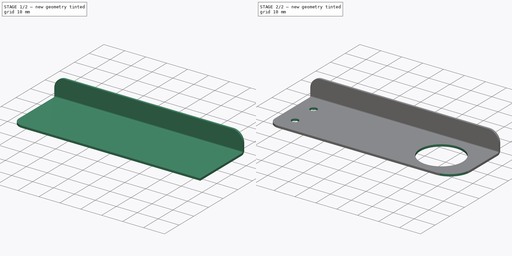
[diagram: build sequence overview — one tinted view per stage of 2, left to right]
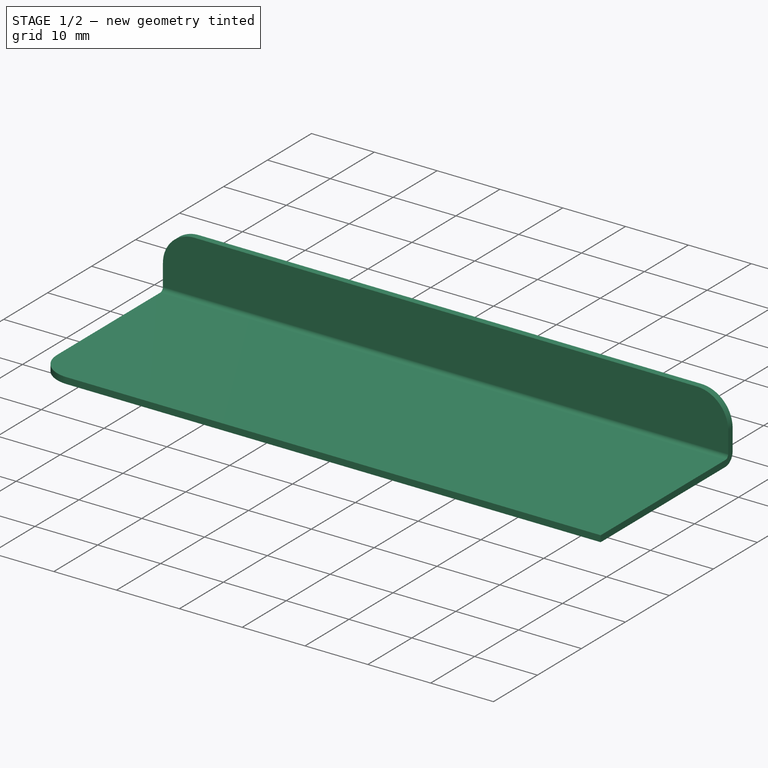
[diagram: stage 1 of 2 — iso view after this stage's code; geometry added in this stage tinted green]
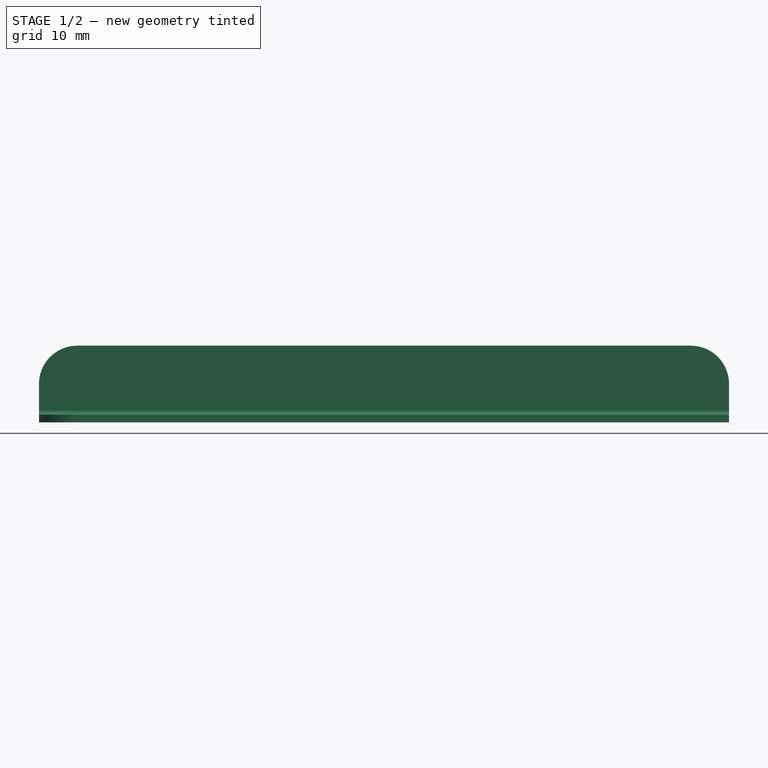
[diagram: stage 1 of 2 — front view after this stage's code; geometry added in this stage tinted green]
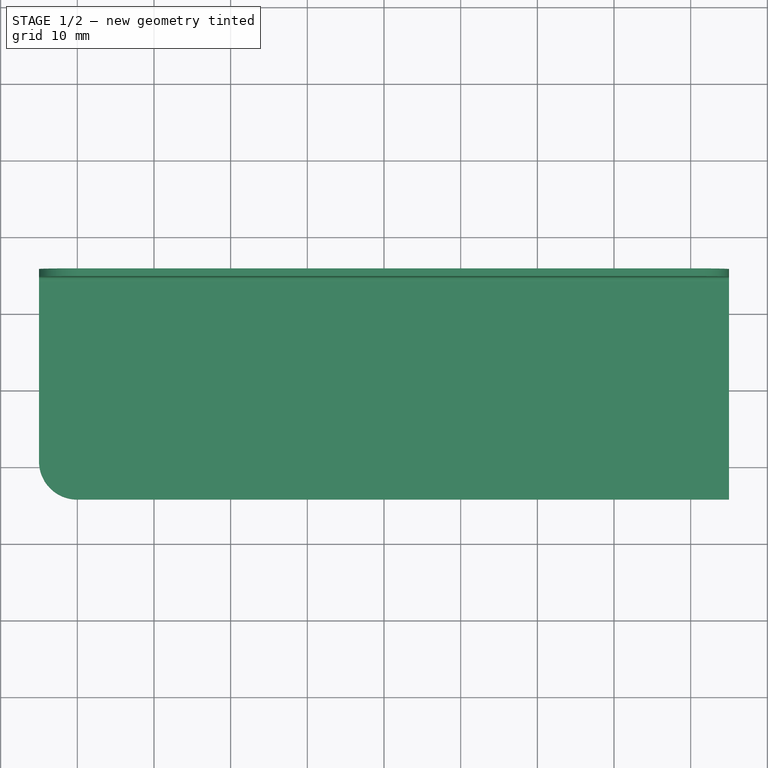
[diagram: stage 1 of 2 — top view after this stage's code; geometry added in this stage tinted green]
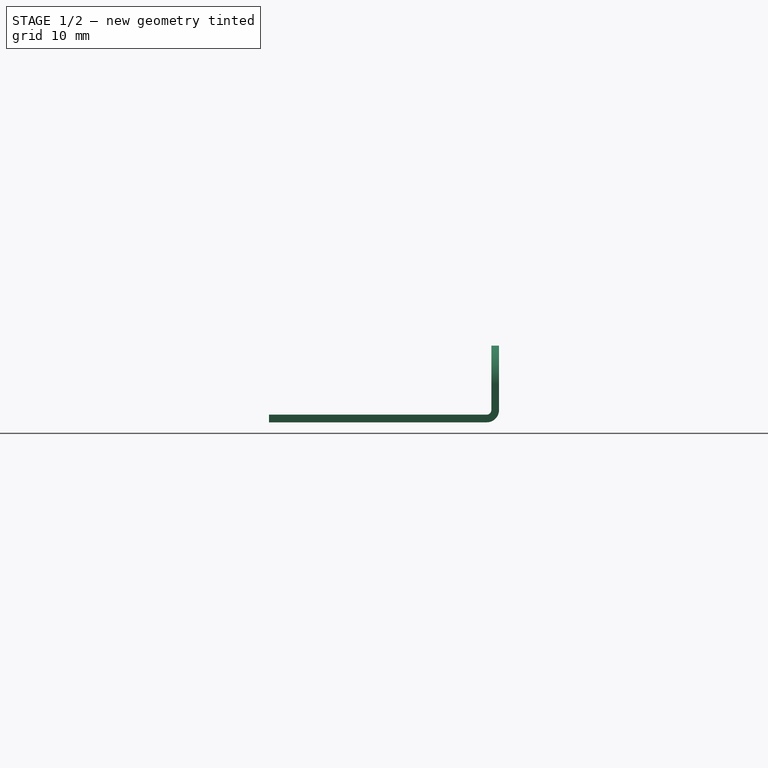
[diagram: stage 1 of 2 — right view after this stage's code; geometry added in this stage tinted green]
FCSTD DOCUMENT  (FreeCAD 1.0R39285 (Git))
Label: FuelReturnHoseBracket
License: All rights reserved
LicenseURL: https://en.wikipedia.org/wiki/All_rights_reserved
objects: PartDesign::Fillet×2, PartDesign::FeaturePython×1, Sketcher::SketchObject×1, PartDesign::Pocket×1, PartDesign::Body×1
note: 14 computed .brp shape members not serialized (recipe doc carries the construction recipe); baked Part::Feature solids carry a one-line shape summary decoded from their .brp

FEATURE [PartDesign::FeaturePython] BaseShape  # WARN: FeaturePython — macro-defined, semantics opaque (R4)
  Suppressed = false
  fillGaps = true
  flangeWidth = 5
  height = 10
  length = 90
  originLoc = 4
  radius = 0.61
  shapeType = 1
  thickness = 1
  width = 30
FEATURE [PartDesign::Fillet] Fillet
  Base = -> BaseShape [Edge20,Edge1,Edge28]
  BaseFeature = -> BaseShape
  Radius = 5
  Refine = true
  SupportTransform = false
  Suppressed = false
  UseAllEdges = false
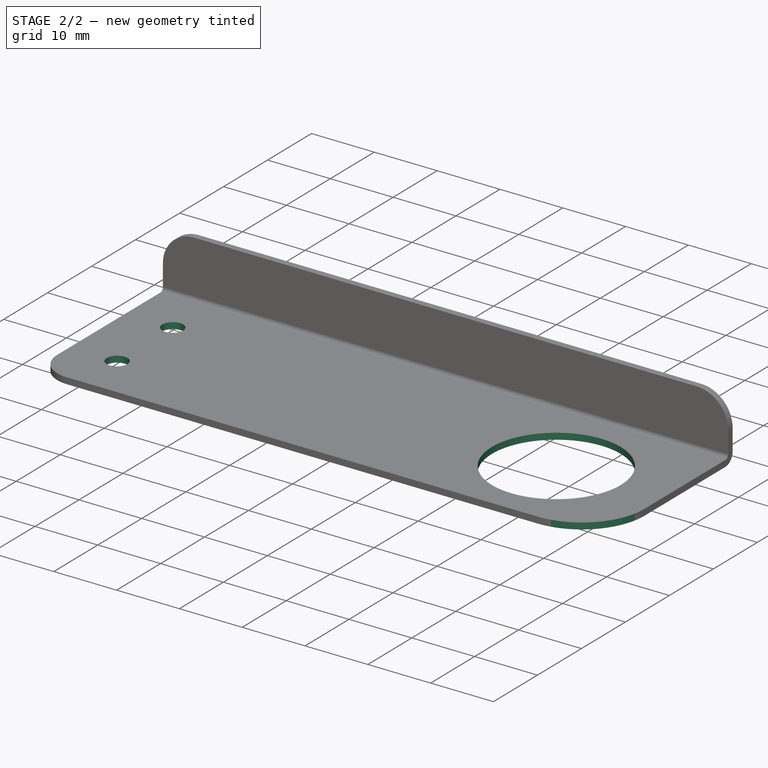
[diagram: stage 2 of 2 — iso view after this stage's code; geometry added in this stage tinted green]
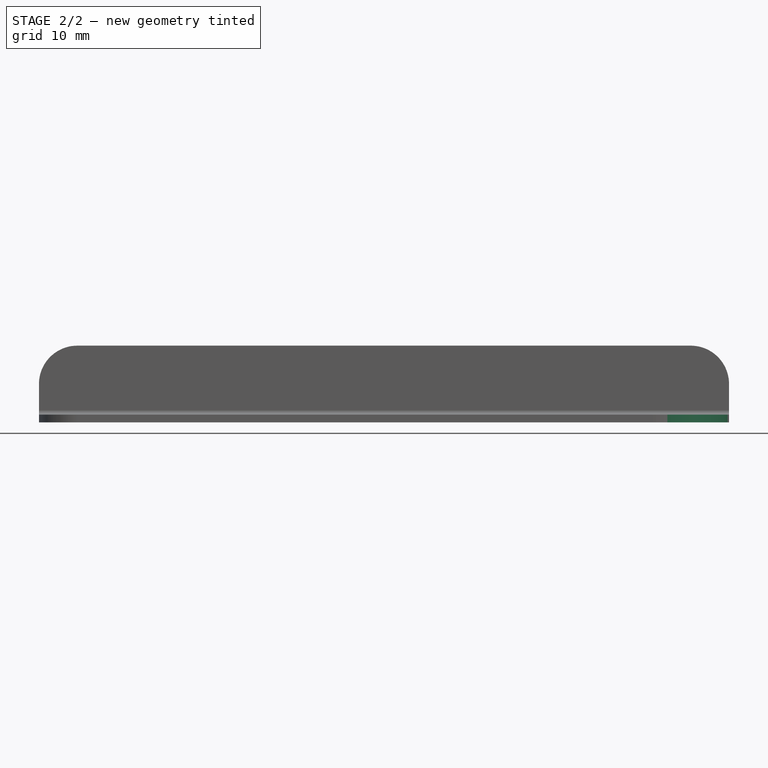
[diagram: stage 2 of 2 — front view after this stage's code; geometry added in this stage tinted green]
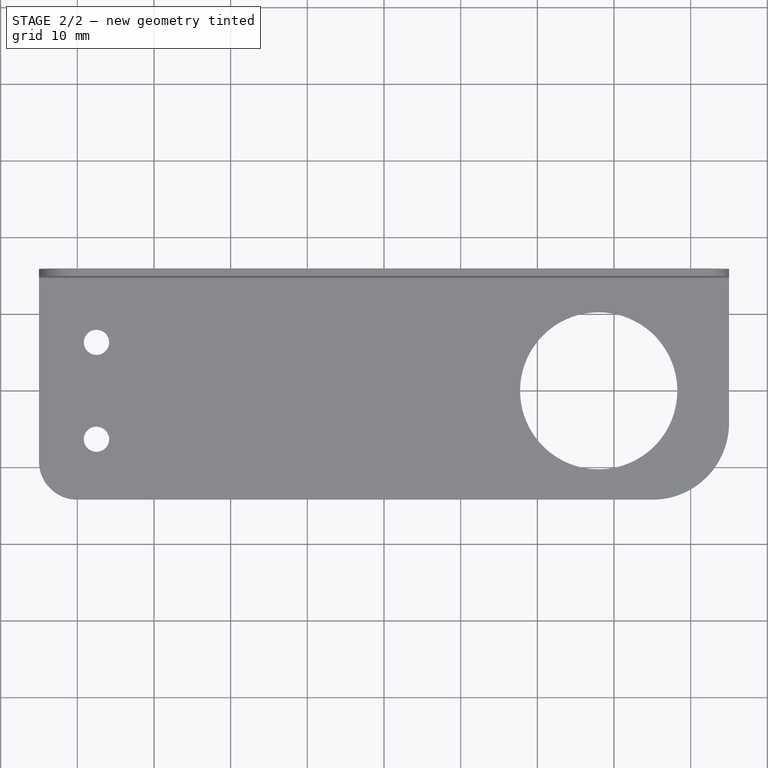
[diagram: stage 2 of 2 — top view after this stage's code; geometry added in this stage tinted green]
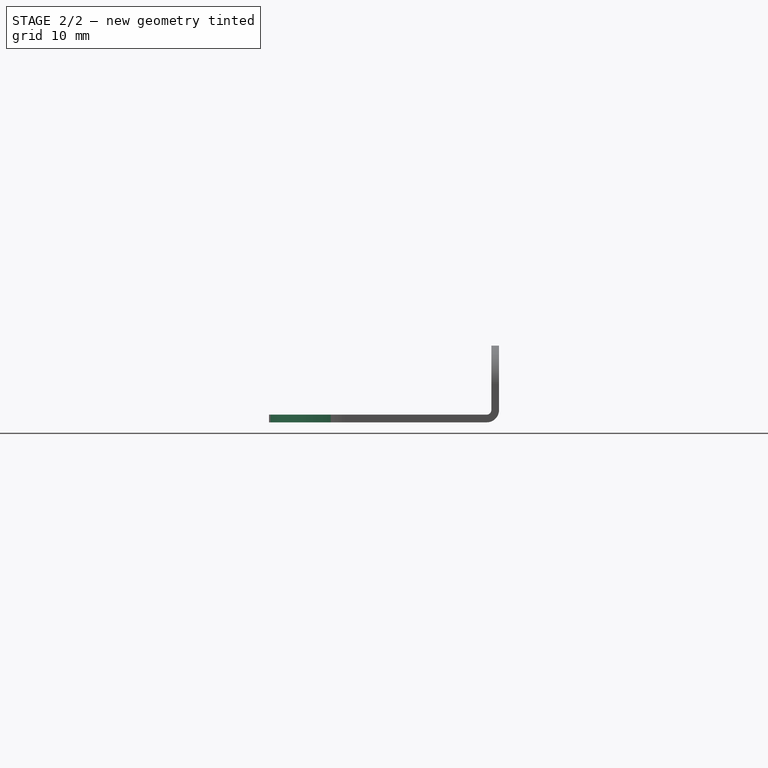
[diagram: stage 2 of 2 — right view after this stage's code; geometry added in this stage tinted green]
FEATURE [PartDesign::Fillet] Fillet001
  Base = -> Fillet [Edge16]
  BaseFeature = -> Fillet
  Radius = 10
  Refine = true
  SupportTransform = false
  Suppressed = false
  UseAllEdges = false
FEATURE [Sketcher::SketchObject] Sketch
  ArcFitTolerance = 1e-06
  AttachmentSupport = -> [Fillet001]
  ExternalGeometry = -> [Fillet001]
  FullyConstrained = true
  MakeInternals = false
  MapMode = 5
  Placement = pos=(0,0,1) rot=(0,0,1;0rad)
  sketch-geometry (6):
    g0: Circle CenterX=28 CenterY=0 CenterZ=0 NormalX=0 NormalY=0 NormalZ=1 AngleXU=0 Radius=10.25
    g1: Circle [constr] CenterX=28 CenterY=0 CenterZ=0 NormalX=0 NormalY=0 NormalZ=1 AngleXU=0 Radius=13.5
    g2: Circle [constr] CenterX=28 CenterY=0 CenterZ=0 NormalX=0 NormalY=0 NormalZ=1 AngleXU=0 Radius=6.35
    g3: Circle CenterX=-37.5 CenterY=6.32 CenterZ=0 NormalX=0 NormalY=0 NormalZ=1 AngleXU=0 Radius=1.65
    g4: Circle CenterX=-37.5 CenterY=-6.32 CenterZ=0 NormalX=0 NormalY=0 NormalZ=1 AngleXU=0 Radius=1.65
    g5: LineSegment [constr] StartX=-30 StartY=14.195 StartZ=0 EndX=-30 EndY=-14.195 EndZ=0
  constraints (16):
    c: Diameter(g0) = 20.5
    c: PointOnObject(g0,g-1)
    c: Diameter(g1) = 27
    c: Coincident(g1,g0)
    c: Diameter(g2) = 12.7
    c: Coincident(g2,g0)
    c: DistanceX(g-3,g0) = 73
    c: Diameter(g3) = 3.3
    c: Equal(g3,g4)
    c: Symmetric(g3,g4,g-1)
    c: DistanceX(g-3,g3) = 7.5
    c: DistanceY(g-1,g3) = 6.32
    c: Vertical(g5)
    c: DistanceX(g-3,g5) = 15
    c: PointOnObject(g5,g-3)
    c: PointOnObject(g5,g-4)
FEATURE [PartDesign::Pocket] Pocket
  BaseFeature = -> Fillet001
  Direction = (0,0,-1)
  Length = 5
  Length2 = 5
  Profile = -> Sketch
  ReferenceAxis = -> Sketch [N_Axis]
  Refine = true
  Suppressed = false
  Type = 1
FEATURE [PartDesign::Body] Body
  AllowCompound = false
  Group = -> [BaseShape,Fillet,Fillet001,Sketch,Pocket]
  Origin = -> Origin
  Tip = -> Pocket
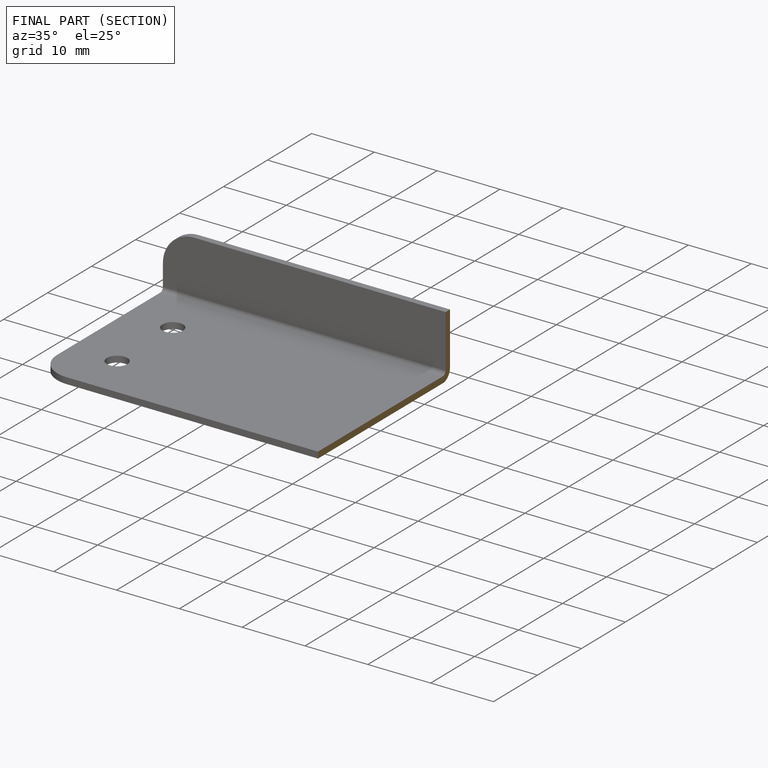
[diagram: finished part — half-section view (interior)]
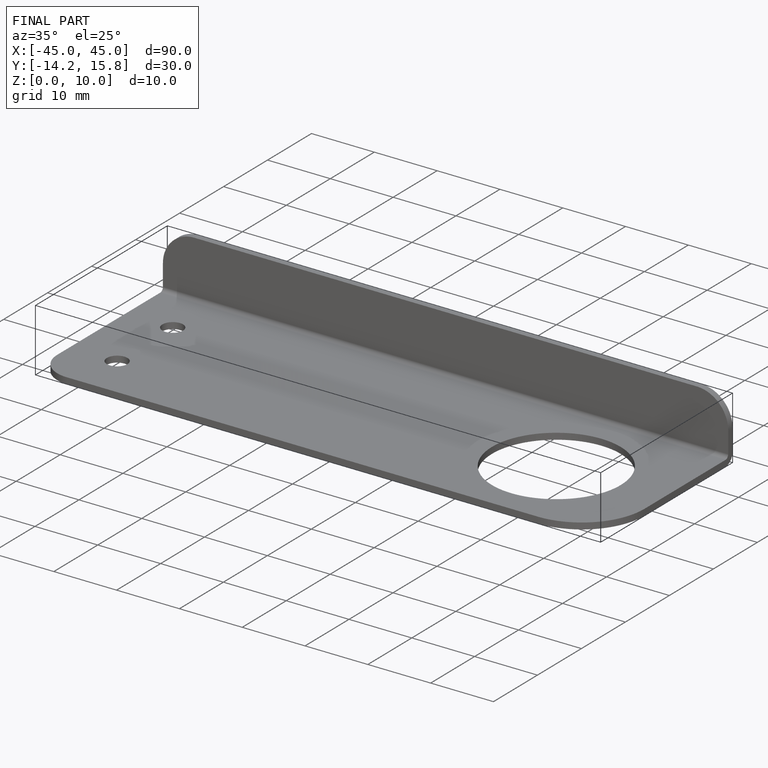
[diagram: finished part — iso view with bounding-box wireframe]
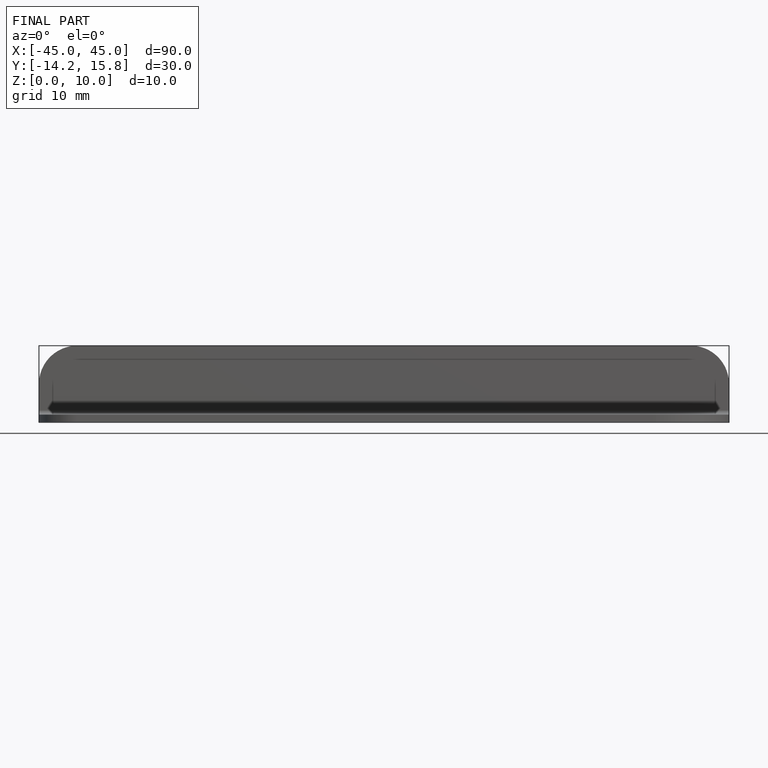
[diagram: finished part — front view with bounding-box wireframe]
